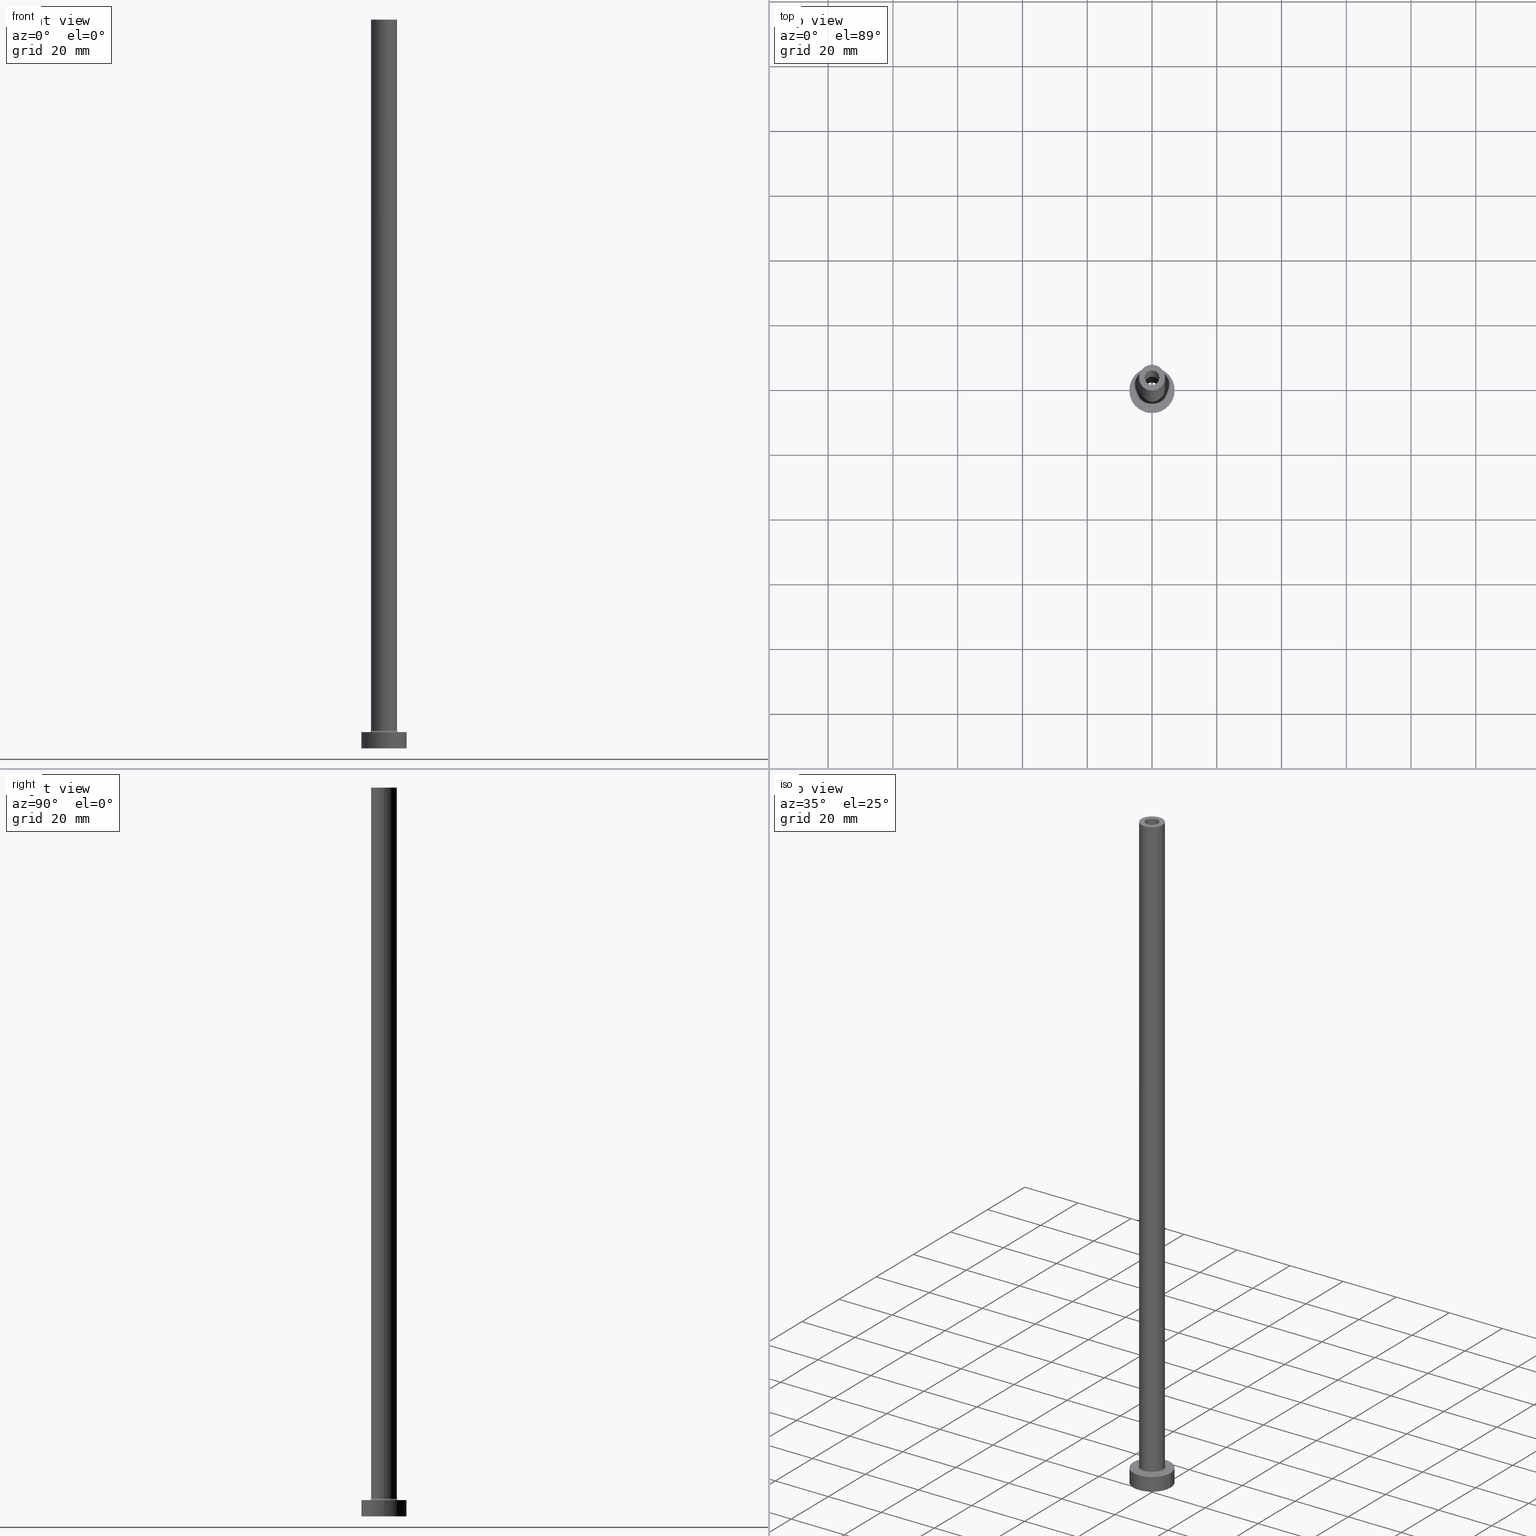
[diagram: canonical four-view strip — front | top / right | iso, engineering-drawing reading convention]
A machine part, canonical four-view strip (front | top / right | iso — engineering-drawing reading convention). The complete STEP part file that produces these views, byte-faithful:
ISO-10303-21;
HEADER;
FILE_DESCRIPTION (( 'STEP AP203' ),
    '1' );
FILE_NAME ('bf27.STEP',
    '2023-02-13T17:22:31',
    ( '' ),
    ( '' ),
    'SwSTEP 2.0',
    'SolidWorks 2019',
    '' );
FILE_SCHEMA (( 'CONFIG_CONTROL_DESIGN' ));
ENDSEC;

DATA;
#1 = ORIENTED_EDGE ( 'NONE', *, *, #126, .T. ) ;
#2 = VECTOR ( 'NONE', #210, 1000.000000000000000 ) ;
#3 = LINE ( 'NONE', #457, #106 ) ;
#4 = EDGE_LOOP ( 'NONE', ( #128, #224 ) ) ;
#5 = CC_DESIGN_SECURITY_CLASSIFICATION ( #340, ( #110 ) ) ;
#6 = DIRECTION ( 'NONE',  ( 1.000000000000000000, 0.000000000000000000, 0.000000000000000000 ) ) ;
#7 = CC_DESIGN_PERSON_AND_ORGANIZATION_ASSIGNMENT ( #437, #132, ( #83 ) ) ;
#8 = EDGE_LOOP ( 'NONE', ( #67, #1 ) ) ;
#9 = DIRECTION ( 'NONE',  ( -0.000000000000000000, -0.000000000000000000, -1.000000000000000000 ) ) ;
#10 = EDGE_LOOP ( 'NONE', ( #405, #358 ) ) ;
#11 = CARTESIAN_POINT ( 'NONE',  ( 0.000000000000000000, 0.000000000000000000, 225.0000000000000000 ) ) ;
#12 = AXIS2_PLACEMENT_3D ( 'NONE', #125, #255, #188 ) ;
#13 = UNCERTAINTY_MEASURE_WITH_UNIT (LENGTH_MEASURE( 1.000000000000000082E-05 ), #127, 'distance_accuracy_value', 'NONE');
#14 = DATE_TIME_ROLE ( 'creation_date' ) ;
#15 = AXIS2_PLACEMENT_3D ( 'NONE', #445, #411, #109 ) ;
#16 = DIRECTION ( 'NONE',  ( -1.000000000000000000, 0.000000000000000000, 0.000000000000000000 ) ) ;
#17 = CARTESIAN_POINT ( 'NONE',  ( 0.000000000000000000, 0.000000000000000000, 180.0000000000000000 ) ) ;
#18 = EDGE_CURVE ( 'NONE', #327, #143, #150, .T. ) ;
#19 = DIRECTION ( 'NONE',  ( 1.000000000000000000, 0.000000000000000000, 0.000000000000000000 ) ) ;
#20 = AXIS2_PLACEMENT_3D ( 'NONE', #113, #177, #249 ) ;
#21 = DIRECTION ( 'NONE',  ( -0.000000000000000000, -0.000000000000000000, -1.000000000000000000 ) ) ;
#22 = PERSON ( 'NEUR�EN�', 'NEUR�EN�', 'NEUR�EN�', ('NEUR�EN�'), ('NEUR�EN�'), ('NEUR�EN�') ) ;
#23 = COORDINATED_UNIVERSAL_TIME_OFFSET ( 1, 0, .AHEAD. ) ;
#24 = DIRECTION ( 'NONE',  ( 1.000000000000000000, 0.000000000000000000, 0.000000000000000000 ) ) ;
#25 = PRODUCT_RELATED_PRODUCT_CATEGORY ( 'detail', '', ( #169 ) ) ;
#26 = ADVANCED_FACE ( 'NONE', ( #60 ), #102, .F. ) ;
#27 = DIRECTION ( 'NONE',  ( -1.000000000000000000, 0.000000000000000000, 0.000000000000000000 ) ) ;
#28 = PLANE ( 'NONE',  #89 ) ;
#29 = VERTEX_POINT ( 'NONE', #133 ) ;
#30 = VECTOR ( 'NONE', #273, 1000.000000000000000 ) ;
#31 = AXIS2_PLACEMENT_3D ( 'NONE', #425, #402, #53 ) ;
#32 = LINE ( 'NONE', #357, #2 ) ;
#33 = CALENDAR_DATE ( 2023, 13, 2 ) ;
#34 = EDGE_LOOP ( 'NONE', ( #191, #355, #157, #145 ) ) ;
#35 = DIRECTION ( 'NONE',  ( -0.000000000000000000, -0.000000000000000000, -1.000000000000000000 ) ) ;
#36 = EDGE_CURVE ( 'NONE', #143, #29, #374, .T. ) ;
#37 = ORIENTED_EDGE ( 'NONE', *, *, #103, .T. ) ;
#38 = ADVANCED_FACE ( 'NONE', ( #375, #303 ), #439, .F. ) ;
#39 = FACE_OUTER_BOUND ( 'NONE', #162, .T. ) ;
#40 = AXIS2_PLACEMENT_3D ( 'NONE', #343, #244, #16 ) ;
#41 = FACE_OUTER_BOUND ( 'NONE', #278, .T. ) ;
#42 = APPROVAL_DATE_TIME ( #360, #227 ) ;
#43 = CC_DESIGN_APPROVAL ( #314, ( #83 ) ) ;
#44 = EDGE_LOOP ( 'NONE', ( #211, #335, #151, #194 ) ) ;
#45 = CC_DESIGN_APPROVAL ( #232, ( #340 ) ) ;
#46 = DIRECTION ( 'NONE',  ( 0.000000000000000000, 0.000000000000000000, 1.000000000000000000 ) ) ;
#47 = ORIENTED_EDGE ( 'NONE', *, *, #103, .F. ) ;
#48 = CARTESIAN_POINT ( 'NONE',  ( -2.250000000000000000, 0.000000000000000000, 225.0000000000000000 ) ) ;
#49 = DIRECTION ( 'NONE',  ( 1.000000000000000000, 0.000000000000000000, 0.000000000000000000 ) ) ;
#50 = CARTESIAN_POINT ( 'NONE',  ( 0.000000000000000000, 0.000000000000000000, 5.500000000000005329 ) ) ;
#51 = ORIENTED_EDGE ( 'NONE', *, *, #183, .F. ) ;
#52 = EDGE_CURVE ( 'NONE', #95, #321, #270, .T. ) ;
#53 = DIRECTION ( 'NONE',  ( 1.000000000000000000, 0.000000000000000000, 0.000000000000000000 ) ) ;
#54 = EDGE_LOOP ( 'NONE', ( #395, #217, #176, #434 ) ) ;
#55 = DIRECTION ( 'NONE',  ( 1.000000000000000000, 0.000000000000000000, 0.000000000000000000 ) ) ;
#56 = DIRECTION ( 'NONE',  ( 0.000000000000000000, 0.000000000000000000, 1.000000000000000000 ) ) ;
#57 = DIRECTION ( 'NONE',  ( 0.000000000000000000, 0.000000000000000000, 1.000000000000000000 ) ) ;
#58 = EDGE_CURVE ( 'NONE', #321, #329, #173, .T. ) ;
#59 = CARTESIAN_POINT ( 'NONE',  ( -7.000000000000000000, 0.000000000000000000, 5.000000000000000000 ) ) ;
#60 = FACE_OUTER_BOUND ( 'NONE', #34, .T. ) ;
#61 = APPROVAL_ROLE ( '' ) ;
#62 = VECTOR ( 'NONE', #9, 1000.000000000000000 ) ;
#63 = CARTESIAN_POINT ( 'NONE',  ( 0.000000000000000000, 0.000000000000000000, 5.500000000000005329 ) ) ;
#64 = CARTESIAN_POINT ( 'NONE',  ( 0.000000000000000000, 0.000000000000000000, 0.000000000000000000 ) ) ;
#65 = AXIS2_PLACEMENT_3D ( 'NONE', #356, #417, #27 ) ;
#66 = DIRECTION ( 'NONE',  ( -1.000000000000000000, 0.000000000000000000, 0.000000000000000000 ) ) ;
#67 = ORIENTED_EDGE ( 'NONE', *, *, #114, .T. ) ;
#68 = CARTESIAN_POINT ( 'NONE',  ( 4.000000000000000000, 4.898587196589412829E-16, 5.500000000000005329 ) ) ;
#69 = PERSON_AND_ORGANIZATION ( #22, #187 ) ;
#70 = AXIS2_PLACEMENT_3D ( 'NONE', #207, #57, #275 ) ;
#71 = ADVANCED_BREP_SHAPE_REPRESENTATION ( 'bf27', ( #98, #382 ), #200 ) ;
#72 = DIRECTION ( 'NONE',  ( 1.000000000000000000, 0.000000000000000000, 0.000000000000000000 ) ) ;
#73 = ORIENTED_EDGE ( 'NONE', *, *, #183, .T. ) ;
#74 = DIRECTION ( 'NONE',  ( 0.000000000000000000, 0.000000000000000000, -1.000000000000000000 ) ) ;
#75 = ORIENTED_EDGE ( 'NONE', *, *, #271, .F. ) ;
#76 = CARTESIAN_POINT ( 'NONE',  ( 2.250000000000000000, 2.755455298081544285E-16, 225.0000000000000000 ) ) ;
#77 = APPROVAL_ROLE ( '' ) ;
#78 = EDGE_LOOP ( 'NONE', ( #397, #86, #73, #259 ) ) ;
#79 = CIRCLE ( 'NONE', #31, 4.000000000000000000 ) ;
#80 = CARTESIAN_POINT ( 'NONE',  ( 0.000000000000000000, 0.000000000000000000, 225.0000000000000000 ) ) ;
#81 = CC_DESIGN_APPROVAL ( #227, ( #110 ) ) ;
#82 = ORIENTED_EDGE ( 'NONE', *, *, #339, .F. ) ;
#83 = PRODUCT_DEFINITION ( 'NEZN�M�', '', #110, #336 ) ;
#84 = CIRCLE ( 'NONE', #118, 4.500000000000000888 ) ;
#85 = PLANE ( 'NONE',  #240 ) ;
#86 = ORIENTED_EDGE ( 'NONE', *, *, #36, .T. ) ;
#87 = DIRECTION ( 'NONE',  ( 1.000000000000000000, 0.000000000000000000, -0.000000000000000000 ) ) ;
#88 = ORIENTED_EDGE ( 'NONE', *, *, #366, .F. ) ;
#89 = AXIS2_PLACEMENT_3D ( 'NONE', #315, #251, #172 ) ;
#90 = AXIS2_PLACEMENT_3D ( 'NONE', #63, #167, #269 ) ;
#91 = DIRECTION ( 'NONE',  ( 0.000000000000000000, 0.000000000000000000, 1.000000000000000000 ) ) ;
#92 = EDGE_CURVE ( 'NONE', #124, #95, #307, .T. ) ;
#93 = ORIENTED_EDGE ( 'NONE', *, *, #345, .F. ) ;
#94 = DATE_AND_TIME ( #129, #248 ) ;
#95 = VERTEX_POINT ( 'NONE', #170 ) ;
#96 = MECHANICAL_CONTEXT ( 'NONE', #131, 'mechanical' ) ;
#97 = DIRECTION ( 'NONE',  ( 1.000000000000000000, 0.000000000000000000, 0.000000000000000000 ) ) ;
#98 = MANIFOLD_SOLID_BREP ( 'Odebrat vysunut�m4', #387 ) ;
#99 = EDGE_CURVE ( 'NONE', #95, #316, #418, .T. ) ;
#100 = CARTESIAN_POINT ( 'NONE',  ( 0.000000000000000000, 0.000000000000000000, 0.000000000000000000 ) ) ;
#101 = CARTESIAN_POINT ( 'NONE',  ( 2.250000000000000000, 2.755455298081544285E-16, 225.0000000000000000 ) ) ;
#102 = CYLINDRICAL_SURFACE ( 'NONE', #40, 2.250000000000000000 ) ;
#103 = EDGE_CURVE ( 'NONE', #262, #367, #137, .T. ) ;
#104 = EDGE_CURVE ( 'NONE', #390, #29, #313, .T. ) ;
#105 = DIRECTION ( 'NONE',  ( 1.000000000000000000, 0.000000000000000000, -0.000000000000000000 ) ) ;
#106 = VECTOR ( 'NONE', #399, 1000.000000000000000 ) ;
#107 = AXIS2_PLACEMENT_3D ( 'NONE', #441, #203, #347 ) ;
#108 = AXIS2_PLACEMENT_3D ( 'NONE', #190, #359, #297 ) ;
#109 = DIRECTION ( 'NONE',  ( 1.000000000000000000, 0.000000000000000000, 0.000000000000000000 ) ) ;
#110 = PRODUCT_DEFINITION_FORMATION_WITH_SPECIFIED_SOURCE ( 'LIBOVOLN�', '', #169, .NOT_KNOWN. ) ;
#111 = CARTESIAN_POINT ( 'NONE',  ( 0.000000000000000000, 0.000000000000000000, 225.0000000000000000 ) ) ;
#112 = AXIS2_PLACEMENT_3D ( 'NONE', #451, #354, #66 ) ;
#113 = CARTESIAN_POINT ( 'NONE',  ( 0.000000000000000000, 0.000000000000000000, 5.500000000000005329 ) ) ;
#114 = EDGE_CURVE ( 'NONE', #256, #121, #346, .T. ) ;
#115 = CARTESIAN_POINT ( 'NONE',  ( -7.000000000000000000, 0.000000000000000000, 5.000000000000000000 ) ) ;
#116 = CYLINDRICAL_SURFACE ( 'NONE', #112, 2.250000000000000000 ) ;
#117 = CC_DESIGN_DATE_AND_TIME_ASSIGNMENT ( #182, #147, ( #340 ) ) ;
#118 = AXIS2_PLACEMENT_3D ( 'NONE', #407, #198, #337 ) ;
#119 = DIRECTION ( 'NONE',  ( 0.000000000000000000, 0.000000000000000000, 1.000000000000000000 ) ) ;
#120 = CALENDAR_DATE ( 2023, 13, 2 ) ;
#121 = VERTEX_POINT ( 'NONE', #135 ) ;
#122 = FACE_OUTER_BOUND ( 'NONE', #161, .T. ) ;
#123 = PERSON_AND_ORGANIZATION ( #22, #187 ) ;
#124 = VERTEX_POINT ( 'NONE', #140 ) ;
#125 = CARTESIAN_POINT ( 'NONE',  ( 0.000000000000000000, 0.000000000000000000, 5.000000000000000000 ) ) ;
#126 = EDGE_CURVE ( 'NONE', #121, #256, #152, .T. ) ;
#127 =( LENGTH_UNIT ( ) NAMED_UNIT ( * ) SI_UNIT ( .MILLI., .METRE. ) );
#128 = ORIENTED_EDGE ( 'NONE', *, *, #141, .T. ) ;
#129 = CALENDAR_DATE ( 2023, 13, 2 ) ;
#130 = ORIENTED_EDGE ( 'NONE', *, *, #99, .F. ) ;
#131 = APPLICATION_CONTEXT ( 'configuration controlled 3d designs of mechanical parts and assemblies' ) ;
#132 = PERSON_AND_ORGANIZATION_ROLE ( 'creator' ) ;
#133 = CARTESIAN_POINT ( 'NONE',  ( 2.399999999999999911, 2.939152317953647106E-16, 0.000000000000000000 ) ) ;
#134 = EDGE_CURVE ( 'NONE', #404, #256, #272, .T. ) ;
#135 = CARTESIAN_POINT ( 'NONE',  ( 2.250000000000000000, 2.755455298081544285E-16, 180.0000000000000000 ) ) ;
#136 = AXIS2_PLACEMENT_3D ( 'NONE', #215, #184, #323 ) ;
#137 = LINE ( 'NONE', #59, #258 ) ;
#138 = CARTESIAN_POINT ( 'NONE',  ( 0.000000000000000000, 0.000000000000000000, 0.000000000000000000 ) ) ;
#139 = VECTOR ( 'NONE', #74, 1000.000000000000000 ) ;
#140 = CARTESIAN_POINT ( 'NONE',  ( -4.000000000000000000, 0.000000000000000000, 225.0000000000000000 ) ) ;
#141 = EDGE_CURVE ( 'NONE', #124, #160, #293, .T. ) ;
#142 = DIRECTION ( 'NONE',  ( 1.000000000000000000, 0.000000000000000000, 0.000000000000000000 ) ) ;
#143 = VERTEX_POINT ( 'NONE', #201 ) ;
#144 = CARTESIAN_POINT ( 'NONE',  ( 4.500000000000000888, 0.000000000000000000, 5.500000000000005329 ) ) ;
#145 = ORIENTED_EDGE ( 'NONE', *, *, #134, .F. ) ;
#146 = DIRECTION ( 'NONE',  ( 0.000000000000000000, -1.000000000000000000, 0.000000000000000000 ) ) ;
#147 = DATE_TIME_ROLE ( 'classification_date' ) ;
#148 = CYLINDRICAL_SURFACE ( 'NONE', #193, 2.399999999999999911 ) ;
#149 = AXIS2_PLACEMENT_3D ( 'NONE', #421, #119, #381 ) ;
#150 = CIRCLE ( 'NONE', #206, 2.399999999999999911 ) ;
#151 = ORIENTED_EDGE ( 'NONE', *, *, #345, .T. ) ;
#152 = CIRCLE ( 'NONE', #239, 2.250000000000000000 ) ;
#153 = DIRECTION ( 'NONE',  ( 0.000000000000000000, 0.000000000000000000, -1.000000000000000000 ) ) ;
#154 = APPROVAL_STATUS ( 'not_yet_approved' ) ;
#155 =( NAMED_UNIT ( * ) SI_UNIT ( $, .STERADIAN. ) SOLID_ANGLE_UNIT ( ) );
#156 = PERSON_AND_ORGANIZATION_ROLE ( 'design_supplier' ) ;
#157 = ORIENTED_EDGE ( 'NONE', *, *, #114, .F. ) ;
#158 = APPROVAL_DATE_TIME ( #318, #232 ) ;
#159 = ORIENTED_EDGE ( 'NONE', *, *, #204, .T. ) ;
#160 = VERTEX_POINT ( 'NONE', #341 ) ;
#161 = EDGE_LOOP ( 'NONE', ( #130, #414, #296, #75 ) ) ;
#162 = EDGE_LOOP ( 'NONE', ( #299, #179, #291, #47 ) ) ;
#163 = APPROVAL_DATE_TIME ( #94, #314 ) ;
#164 = CARTESIAN_POINT ( 'NONE',  ( 0.000000000000000000, 0.000000000000000000, 0.000000000000000000 ) ) ;
#165 = AXIS2_PLACEMENT_3D ( 'NONE', #171, #310, #438 ) ;
#166 = CC_DESIGN_PERSON_AND_ORGANIZATION_ASSIGNMENT ( #309, #443, ( #169 ) ) ;
#167 = DIRECTION ( 'NONE',  ( 0.000000000000000000, 0.000000000000000000, 1.000000000000000000 ) ) ;
#168 = DIRECTION ( 'NONE',  ( 0.000000000000000000, 0.000000000000000000, 1.000000000000000000 ) ) ;
#169 = PRODUCT ( 'bf27', 'bf27', '', ( #96 ) ) ;
#170 = CARTESIAN_POINT ( 'NONE',  ( -4.000000000000000000, 0.000000000000000000, 5.500000000000005329 ) ) ;
#171 = CARTESIAN_POINT ( 'NONE',  ( 0.000000000000000000, 0.000000000000000000, 5.000000000000000000 ) ) ;
#172 = DIRECTION ( 'NONE',  ( 1.000000000000000000, 0.000000000000000000, -0.000000000000000000 ) ) ;
#173 = CIRCLE ( 'NONE', #107, 4.500000000000000888 ) ;
#174 = EDGE_CURVE ( 'NONE', #262, #331, #352, .T. ) ;
#175 = FACE_OUTER_BOUND ( 'NONE', #192, .T. ) ;
#176 = ORIENTED_EDGE ( 'NONE', *, *, #92, .T. ) ;
#177 = DIRECTION ( 'NONE',  ( 0.000000000000000000, 0.000000000000000000, 1.000000000000000000 ) ) ;
#178 = PERSON_AND_ORGANIZATION ( #22, #187 ) ;
#179 = ORIENTED_EDGE ( 'NONE', *, *, #409, .T. ) ;
#180 = CARTESIAN_POINT ( 'NONE',  ( -2.399999999999999911, 0.000000000000000000, 180.0000000000000000 ) ) ;
#181 = CC_DESIGN_PERSON_AND_ORGANIZATION_ASSIGNMENT ( #69, #156, ( #110 ) ) ;
#182 = DATE_AND_TIME ( #33, #380 ) ;
#183 = EDGE_CURVE ( 'NONE', #29, #390, #415, .T. ) ;
#184 = DIRECTION ( 'NONE',  ( 0.000000000000000000, 0.000000000000000000, -1.000000000000000000 ) ) ;
#185 = AXIS2_PLACEMENT_3D ( 'NONE', #396, #91, #460 ) ;
#186 = APPROVAL_PERSON_ORGANIZATION ( #178, #232, #393 ) ;
#187 = ORGANIZATION ( 'NEUR�EN�', 'NEUR�EN�', '' ) ;
#188 = DIRECTION ( 'NONE',  ( -1.000000000000000000, 0.000000000000000000, 0.000000000000000000 ) ) ;
#189 = ORIENTED_EDGE ( 'NONE', *, *, #366, .T. ) ;
#190 = CARTESIAN_POINT ( 'NONE',  ( 0.000000000000000000, 0.000000000000000000, 5.500000000000005329 ) ) ;
#191 = ORIENTED_EDGE ( 'NONE', *, *, #308, .T. ) ;
#192 = EDGE_LOOP ( 'NONE', ( #263, #88 ) ) ;
#193 = AXIS2_PLACEMENT_3D ( 'NONE', #285, #153, #286 ) ;
#194 = ORIENTED_EDGE ( 'NONE', *, *, #92, .F. ) ;
#195 = FACE_BOUND ( 'NONE', #231, .T. ) ;
#196 = ORIENTED_EDGE ( 'NONE', *, *, #126, .F. ) ;
#197 = EDGE_CURVE ( 'NONE', #329, #321, #84, .T. ) ;
#198 = DIRECTION ( 'NONE',  ( -0.000000000000000000, -0.000000000000000000, -1.000000000000000000 ) ) ;
#199 = VECTOR ( 'NONE', #268, 1000.000000000000000 ) ;
#200 =( GEOMETRIC_REPRESENTATION_CONTEXT ( 3 ) GLOBAL_UNCERTAINTY_ASSIGNED_CONTEXT ( ( #13 ) ) GLOBAL_UNIT_ASSIGNED_CONTEXT ( ( #127, #324, #155 ) ) REPRESENTATION_CONTEXT ( 'NONE', 'WORKASPACE' ) );
#201 = CARTESIAN_POINT ( 'NONE',  ( 2.399999999999999911, 2.939152317953647106E-16, 180.0000000000000000 ) ) ;
#202 = CIRCLE ( 'NONE', #319, 0.5000000000000004441 ) ;
#203 = DIRECTION ( 'NONE',  ( -0.000000000000000000, -0.000000000000000000, -1.000000000000000000 ) ) ;
#204 = EDGE_CURVE ( 'NONE', #429, #404, #218, .T. ) ;
#205 = DIRECTION ( 'NONE',  ( 1.224646799147353207E-16, 1.000000000000000000, -0.000000000000000000 ) ) ;
#206 = AXIS2_PLACEMENT_3D ( 'NONE', #294, #365, #49 ) ;
#207 = CARTESIAN_POINT ( 'NONE',  ( 0.000000000000000000, 0.000000000000000000, 225.0000000000000000 ) ) ;
#208 = CARTESIAN_POINT ( 'NONE',  ( 0.000000000000000000, 0.000000000000000000, 225.0000000000000000 ) ) ;
#209 = EDGE_CURVE ( 'NONE', #429, #121, #238, .T. ) ;
#210 = DIRECTION ( 'NONE',  ( 0.000000000000000000, 0.000000000000000000, -1.000000000000000000 ) ) ;
#211 = ORIENTED_EDGE ( 'NONE', *, *, #461, .F. ) ;
#212 = CARTESIAN_POINT ( 'NONE',  ( 4.500000000000000888, 0.000000000000000000, 5.000000000000002665 ) ) ;
#213 = PERSON_AND_ORGANIZATION_ROLE ( 'classification_officer' ) ;
#214 = ORIENTED_EDGE ( 'NONE', *, *, #209, .F. ) ;
#215 = CARTESIAN_POINT ( 'NONE',  ( 0.000000000000000000, 0.000000000000000000, 186.7882250993908713 ) ) ;
#216 = COORDINATED_UNIVERSAL_TIME_OFFSET ( 1, 0, .AHEAD. ) ;
#217 = ORIENTED_EDGE ( 'NONE', *, *, #141, .F. ) ;
#218 = CIRCLE ( 'NONE', #334, 2.250000000000000000 ) ;
#219 = CARTESIAN_POINT ( 'NONE',  ( 0.000000000000000000, 0.000000000000000000, 5.000000000000000000 ) ) ;
#220 = EDGE_LOOP ( 'NONE', ( #82, #450 ) ) ;
#221 = CARTESIAN_POINT ( 'NONE',  ( 7.000000000000000000, 8.572527594031473190E-16, 0.000000000000000000 ) ) ;
#222 = COORDINATED_UNIVERSAL_TIME_OFFSET ( 1, 0, .AHEAD. ) ;
#223 = APPLICATION_CONTEXT ( 'configuration controlled 3d designs of mechanical parts and assemblies' ) ;
#224 = ORIENTED_EDGE ( 'NONE', *, *, #461, .T. ) ;
#225 = DIRECTION ( 'NONE',  ( 0.000000000000000000, 0.000000000000000000, 1.000000000000000000 ) ) ;
#226 = ORIENTED_EDGE ( 'NONE', *, *, #52, .F. ) ;
#227 = APPROVAL ( #154, 'NEUR�EN�' ) ;
#228 = ORIENTED_EDGE ( 'NONE', *, *, #36, .F. ) ;
#229 = FACE_OUTER_BOUND ( 'NONE', #266, .T. ) ;
#230 = CIRCLE ( 'NONE', #20, 4.000000000000000000 ) ;
#231 = EDGE_LOOP ( 'NONE', ( #386, #236 ) ) ;
#232 = APPROVAL ( #458, 'NEUR�EN�' ) ;
#233 = CARTESIAN_POINT ( 'NONE',  ( 7.000000000000000000, 8.572527594031473190E-16, 5.000000000000000000 ) ) ;
#234 = EDGE_LOOP ( 'NONE', ( #228, #189, #423, #287 ) ) ;
#235 = PRODUCT_DEFINITION_SHAPE ( 'NONE', 'NONE',  #83 ) ;
#236 = ORIENTED_EDGE ( 'NONE', *, *, #58, .T. ) ;
#237 = COORDINATED_UNIVERSAL_TIME_OFFSET ( 1, 0, .AHEAD. ) ;
#238 = LINE ( 'NONE', #101, #139 ) ;
#239 = AXIS2_PLACEMENT_3D ( 'NONE', #17, #168, #305 ) ;
#240 = AXIS2_PLACEMENT_3D ( 'NONE', #80, #225, #362 ) ;
#241 = DIRECTION ( 'NONE',  ( 0.000000000000000000, 0.000000000000000000, 1.000000000000000000 ) ) ;
#242 = CARTESIAN_POINT ( 'NONE',  ( 0.000000000000000000, 0.000000000000000000, 180.0000000000000000 ) ) ;
#243 = APPLICATION_PROTOCOL_DEFINITION ( 'international standard', 'config_control_design', 1994, #223 ) ;
#244 = DIRECTION ( 'NONE',  ( 0.000000000000000000, 0.000000000000000000, -1.000000000000000000 ) ) ;
#245 = AXIS2_PLACEMENT_3D ( 'NONE', #50, #46, #6 ) ;
#246 = TOROIDAL_SURFACE ( 'NONE', #108, 4.500000000000000888, 0.5000000000000000000 ) ;
#247 = CARTESIAN_POINT ( 'NONE',  ( 2.399999999999999911, 2.939152317953647106E-16, 186.7882250993908713 ) ) ;
#248 = LOCAL_TIME ( 18, 22, 31.00000000000000000, #23 ) ;
#249 = DIRECTION ( 'NONE',  ( 1.000000000000000000, 0.000000000000000000, 0.000000000000000000 ) ) ;
#250 = ADVANCED_FACE ( 'NONE', ( #39 ), #392, .T. ) ;
#251 = DIRECTION ( 'NONE',  ( 0.000000000000000000, 0.000000000000000000, 1.000000000000000000 ) ) ;
#252 = ADVANCED_FACE ( 'NONE', ( #416 ), #116, .F. ) ;
#253 = FACE_BOUND ( 'NONE', #8, .T. ) ;
#254 = FACE_OUTER_BOUND ( 'NONE', #44, .T. ) ;
#255 = DIRECTION ( 'NONE',  ( -0.000000000000000000, -0.000000000000000000, -1.000000000000000000 ) ) ;
#256 = VERTEX_POINT ( 'NONE', #455 ) ;
#257 = CARTESIAN_POINT ( 'NONE',  ( -7.000000000000000000, 0.000000000000000000, 0.000000000000000000 ) ) ;
#258 = VECTOR ( 'NONE', #444, 1000.000000000000000 ) ;
#259 = ORIENTED_EDGE ( 'NONE', *, *, #330, .F. ) ;
#260 = LINE ( 'NONE', #233, #62 ) ;
#261 = PERSON_AND_ORGANIZATION_ROLE ( 'creator' ) ;
#262 = VERTEX_POINT ( 'NONE', #115 ) ;
#263 = ORIENTED_EDGE ( 'NONE', *, *, #18, .F. ) ;
#264 = CC_DESIGN_DATE_AND_TIME_ASSIGNMENT ( #338, #14, ( #83 ) ) ;
#265 = CARTESIAN_POINT ( 'NONE',  ( 0.000000000000000000, 0.000000000000000000, 5.000000000000000000 ) ) ;
#266 = EDGE_LOOP ( 'NONE', ( #226, #93, #325, #267 ) ) ;
#267 = ORIENTED_EDGE ( 'NONE', *, *, #58, .F. ) ;
#268 = DIRECTION ( 'NONE',  ( 0.000000000000000000, 0.000000000000000000, -1.000000000000000000 ) ) ;
#269 = DIRECTION ( 'NONE',  ( 1.000000000000000000, 0.000000000000000000, 0.000000000000000000 ) ) ;
#270 = CIRCLE ( 'NONE', #442, 0.5000000000000004441 ) ;
#271 = EDGE_CURVE ( 'NONE', #316, #329, #202, .T. ) ;
#272 = LINE ( 'NONE', #406, #30 ) ;
#273 = DIRECTION ( 'NONE',  ( 0.000000000000000000, 0.000000000000000000, -1.000000000000000000 ) ) ;
#274 = CC_DESIGN_PERSON_AND_ORGANIZATION_ASSIGNMENT ( #456, #213, ( #340 ) ) ;
#275 = DIRECTION ( 'NONE',  ( 1.000000000000000000, 0.000000000000000000, 0.000000000000000000 ) ) ;
#276 = AXIS2_PLACEMENT_3D ( 'NONE', #265, #430, #87 ) ;
#277 = FACE_OUTER_BOUND ( 'NONE', #54, .T. ) ;
#278 = EDGE_LOOP ( 'NONE', ( #370, #298, #37, #400 ) ) ;
#279 = LOCAL_TIME ( 18, 22, 31.00000000000000000, #222 ) ;
#280 = DIRECTION ( 'NONE',  ( 0.000000000000000000, 0.000000000000000000, 1.000000000000000000 ) ) ;
#281 = EDGE_LOOP ( 'NONE', ( #384, #447 ) ) ;
#282 = DIRECTION ( 'NONE',  ( 0.000000000000000000, 0.000000000000000000, -1.000000000000000000 ) ) ;
#283 = ADVANCED_FACE ( 'NONE', ( #253, #175 ), #28, .F. ) ;
#284 = CIRCLE ( 'NONE', #401, 7.000000000000000000 ) ;
#285 = CARTESIAN_POINT ( 'NONE',  ( 0.000000000000000000, 0.000000000000000000, 186.7882250993908713 ) ) ;
#286 = DIRECTION ( 'NONE',  ( -1.000000000000000000, 0.000000000000000000, 0.000000000000000000 ) ) ;
#287 = ORIENTED_EDGE ( 'NONE', *, *, #104, .T. ) ;
#288 = DIRECTION ( 'NONE',  ( -1.000000000000000000, 0.000000000000000000, 0.000000000000000000 ) ) ;
#289 = CALENDAR_DATE ( 2023, 13, 2 ) ;
#290 = ADVANCED_FACE ( 'NONE', ( #254 ), #317, .T. ) ;
#291 = ORIENTED_EDGE ( 'NONE', *, *, #348, .T. ) ;
#292 = PLANE ( 'NONE',  #276 ) ;
#293 = CIRCLE ( 'NONE', #70, 4.000000000000000000 ) ;
#294 = CARTESIAN_POINT ( 'NONE',  ( 0.000000000000000000, 0.000000000000000000, 180.0000000000000000 ) ) ;
#295 = FACE_BOUND ( 'NONE', #281, .T. ) ;
#296 = ORIENTED_EDGE ( 'NONE', *, *, #197, .F. ) ;
#297 = DIRECTION ( 'NONE',  ( 1.000000000000000000, 0.000000000000000000, 0.000000000000000000 ) ) ;
#298 = ORIENTED_EDGE ( 'NONE', *, *, #174, .F. ) ;
#299 = ORIENTED_EDGE ( 'NONE', *, *, #304, .F. ) ;
#300 = LOCAL_TIME ( 18, 22, 31.00000000000000000, #237 ) ;
#301 = DIRECTION ( 'NONE',  ( 0.000000000000000000, 0.000000000000000000, 1.000000000000000000 ) ) ;
#302 = PERSON_AND_ORGANIZATION ( #22, #187 ) ;
#303 = FACE_OUTER_BOUND ( 'NONE', #220, .T. ) ;
#304 = EDGE_CURVE ( 'NONE', #331, #262, #344, .T. ) ;
#305 = DIRECTION ( 'NONE',  ( 1.000000000000000000, 0.000000000000000000, 0.000000000000000000 ) ) ;
#306 = VECTOR ( 'NONE', #21, 1000.000000000000000 ) ;
#307 = LINE ( 'NONE', #378, #306 ) ;
#308 = EDGE_CURVE ( 'NONE', #404, #429, #373, .T. ) ;
#309 = PERSON_AND_ORGANIZATION ( #22, #187 ) ;
#310 = DIRECTION ( 'NONE',  ( 0.000000000000000000, 0.000000000000000000, 1.000000000000000000 ) ) ;
#311 = DIRECTION ( 'NONE',  ( 1.000000000000000000, 0.000000000000000000, 0.000000000000000000 ) ) ;
#312 = AXIS2_PLACEMENT_3D ( 'NONE', #208, #388, #72 ) ;
#313 = CIRCLE ( 'NONE', #424, 2.399999999999999911 ) ;
#314 = APPROVAL ( #369, 'NEUR�EN�' ) ;
#315 = CARTESIAN_POINT ( 'NONE',  ( 0.000000000000000000, 0.000000000000000000, 180.0000000000000000 ) ) ;
#316 = VERTEX_POINT ( 'NONE', #68 ) ;
#317 = CYLINDRICAL_SURFACE ( 'NONE', #412, 4.000000000000000000 ) ;
#318 = DATE_AND_TIME ( #289, #435 ) ;
#319 = AXIS2_PLACEMENT_3D ( 'NONE', #144, #146, #282 ) ;
#320 = CARTESIAN_POINT ( 'NONE',  ( 7.000000000000000000, 8.572527594031473190E-16, 5.000000000000000000 ) ) ;
#321 = VERTEX_POINT ( 'NONE', #419 ) ;
#322 = CIRCLE ( 'NONE', #185, 2.399999999999999911 ) ;
#323 = DIRECTION ( 'NONE',  ( -1.000000000000000000, 0.000000000000000000, 0.000000000000000000 ) ) ;
#324 =( NAMED_UNIT ( * ) PLANE_ANGLE_UNIT ( ) SI_UNIT ( $, .RADIAN. ) );
#325 = ORIENTED_EDGE ( 'NONE', *, *, #271, .T. ) ;
#326 = FACE_OUTER_BOUND ( 'NONE', #4, .T. ) ;
#327 = VERTEX_POINT ( 'NONE', #180 ) ;
#328 = AXIS2_PLACEMENT_3D ( 'NONE', #164, #410, #105 ) ;
#329 = VERTEX_POINT ( 'NONE', #212 ) ;
#330 = EDGE_CURVE ( 'NONE', #327, #390, #32, .T. ) ;
#331 = VERTEX_POINT ( 'NONE', #320 ) ;
#332 = ADVANCED_FACE ( 'NONE', ( #453 ), #446, .F. ) ;
#333 = ADVANCED_FACE ( 'NONE', ( #350 ), #148, .F. ) ;
#334 = AXIS2_PLACEMENT_3D ( 'NONE', #11, #301, #97 ) ;
#335 = ORIENTED_EDGE ( 'NONE', *, *, #398, .T. ) ;
#336 = DESIGN_CONTEXT ( 'detailed design', #223, 'design' ) ;
#337 = DIRECTION ( 'NONE',  ( 1.000000000000000000, 0.000000000000000000, 0.000000000000000000 ) ) ;
#338 = DATE_AND_TIME ( #372, #300 ) ;
#339 = EDGE_CURVE ( 'NONE', #367, #431, #440, .T. ) ;
#340 = SECURITY_CLASSIFICATION ( '', '', #389 ) ;
#341 = CARTESIAN_POINT ( 'NONE',  ( 4.000000000000000000, 4.898587196589412829E-16, 225.0000000000000000 ) ) ;
#342 = DIRECTION ( 'NONE',  ( -0.000000000000000000, -0.000000000000000000, -1.000000000000000000 ) ) ;
#343 = CARTESIAN_POINT ( 'NONE',  ( 0.000000000000000000, 0.000000000000000000, 225.0000000000000000 ) ) ;
#344 = CIRCLE ( 'NONE', #351, 7.000000000000000000 ) ;
#345 = EDGE_CURVE ( 'NONE', #316, #95, #230, .T. ) ;
#346 = CIRCLE ( 'NONE', #403, 2.250000000000000000 ) ;
#347 = DIRECTION ( 'NONE',  ( 1.000000000000000000, 0.000000000000000000, 0.000000000000000000 ) ) ;
#348 = EDGE_CURVE ( 'NONE', #431, #367, #284, .T. ) ;
#349 = DIRECTION ( 'NONE',  ( 0.000000000000000000, 0.000000000000000000, 1.000000000000000000 ) ) ;
#350 = FACE_OUTER_BOUND ( 'NONE', #234, .T. ) ;
#351 = AXIS2_PLACEMENT_3D ( 'NONE', #219, #280, #311 ) ;
#352 = CIRCLE ( 'NONE', #165, 7.000000000000000000 ) ;
#353 = ADVANCED_FACE ( 'NONE', ( #277 ), #413, .T. ) ;
#354 = DIRECTION ( 'NONE',  ( 0.000000000000000000, 0.000000000000000000, -1.000000000000000000 ) ) ;
#355 = ORIENTED_EDGE ( 'NONE', *, *, #209, .T. ) ;
#356 = CARTESIAN_POINT ( 'NONE',  ( 0.000000000000000000, 0.000000000000000000, 5.000000000000000000 ) ) ;
#357 = CARTESIAN_POINT ( 'NONE',  ( -2.399999999999999911, 0.000000000000000000, 186.7882250993908713 ) ) ;
#358 = ORIENTED_EDGE ( 'NONE', *, *, #304, .T. ) ;
#359 = DIRECTION ( 'NONE',  ( 0.000000000000000000, 0.000000000000000000, 1.000000000000000000 ) ) ;
#360 = DATE_AND_TIME ( #120, #279 ) ;
#361 = APPROVAL_PERSON_ORGANIZATION ( #302, #227, #77 ) ;
#362 = DIRECTION ( 'NONE',  ( 1.000000000000000000, 0.000000000000000000, -0.000000000000000000 ) ) ;
#363 = ORIENTED_EDGE ( 'NONE', *, *, #104, .F. ) ;
#364 = APPLICATION_PROTOCOL_DEFINITION ( 'international standard', 'config_control_design', 1994, #131 ) ;
#365 = DIRECTION ( 'NONE',  ( 0.000000000000000000, 0.000000000000000000, 1.000000000000000000 ) ) ;
#366 = EDGE_CURVE ( 'NONE', #143, #327, #322, .T. ) ;
#367 = VERTEX_POINT ( 'NONE', #257 ) ;
#368 = EDGE_LOOP ( 'NONE', ( #363, #51 ) ) ;
#369 = APPROVAL_STATUS ( 'not_yet_approved' ) ;
#370 = ORIENTED_EDGE ( 'NONE', *, *, #409, .F. ) ;
#371 = ADVANCED_FACE ( 'NONE', ( #229 ), #432, .F. ) ;
#372 = CALENDAR_DATE ( 2023, 13, 2 ) ;
#373 = CIRCLE ( 'NONE', #312, 2.250000000000000000 ) ;
#374 = LINE ( 'NONE', #247, #199 ) ;
#375 = FACE_BOUND ( 'NONE', #368, .T. ) ;
#376 = CARTESIAN_POINT ( 'NONE',  ( -4.500000000000000888, 5.510910596163089556E-16, 5.500000000000005329 ) ) ;
#377 = PERSON_AND_ORGANIZATION ( #22, #187 ) ;
#378 = CARTESIAN_POINT ( 'NONE',  ( -4.000000000000000000, 0.000000000000000000, 225.0000000000000000 ) ) ;
#379 = AXIS2_PLACEMENT_3D ( 'NONE', #111, #383, #288 ) ;
#380 = LOCAL_TIME ( 18, 22, 31.00000000000000000, #216 ) ;
#381 = DIRECTION ( 'NONE',  ( 1.000000000000000000, 0.000000000000000000, 0.000000000000000000 ) ) ;
#382 = AXIS2_PLACEMENT_3D ( 'NONE', #100, #56, #19 ) ;
#383 = DIRECTION ( 'NONE',  ( -0.000000000000000000, -0.000000000000000000, -1.000000000000000000 ) ) ;
#384 = ORIENTED_EDGE ( 'NONE', *, *, #308, .F. ) ;
#385 = DIRECTION ( 'NONE',  ( -1.000000000000000000, 0.000000000000000000, 0.000000000000000000 ) ) ;
#386 = ORIENTED_EDGE ( 'NONE', *, *, #197, .T. ) ;
#387 = CLOSED_SHELL ( 'NONE', ( #26, #332, #427, #290, #250, #433, #454, #38, #353, #448, #371, #333, #283, #252 ) ) ;
#388 = DIRECTION ( 'NONE',  ( 0.000000000000000000, 0.000000000000000000, 1.000000000000000000 ) ) ;
#389 = SECURITY_CLASSIFICATION_LEVEL ( 'unclassified' ) ;
#390 = VERTEX_POINT ( 'NONE', #428 ) ;
#391 = CC_DESIGN_PERSON_AND_ORGANIZATION_ASSIGNMENT ( #123, #261, ( #110 ) ) ;
#392 = CYLINDRICAL_SURFACE ( 'NONE', #65, 7.000000000000000000 ) ;
#393 = APPROVAL_ROLE ( '' ) ;
#394 = FACE_OUTER_BOUND ( 'NONE', #10, .T. ) ;
#395 = ORIENTED_EDGE ( 'NONE', *, *, #398, .F. ) ;
#396 = CARTESIAN_POINT ( 'NONE',  ( 0.000000000000000000, 0.000000000000000000, 180.0000000000000000 ) ) ;
#397 = ORIENTED_EDGE ( 'NONE', *, *, #18, .T. ) ;
#398 = EDGE_CURVE ( 'NONE', #160, #316, #3, .T. ) ;
#399 = DIRECTION ( 'NONE',  ( -0.000000000000000000, -0.000000000000000000, -1.000000000000000000 ) ) ;
#400 = ORIENTED_EDGE ( 'NONE', *, *, #339, .T. ) ;
#401 = AXIS2_PLACEMENT_3D ( 'NONE', #64, #349, #142 ) ;
#402 = DIRECTION ( 'NONE',  ( 0.000000000000000000, 0.000000000000000000, 1.000000000000000000 ) ) ;
#403 = AXIS2_PLACEMENT_3D ( 'NONE', #242, #241, #55 ) ;
#404 = VERTEX_POINT ( 'NONE', #48 ) ;
#405 = ORIENTED_EDGE ( 'NONE', *, *, #174, .T. ) ;
#406 = CARTESIAN_POINT ( 'NONE',  ( -2.250000000000000000, 0.000000000000000000, 225.0000000000000000 ) ) ;
#407 = CARTESIAN_POINT ( 'NONE',  ( 0.000000000000000000, 0.000000000000000000, 5.000000000000000000 ) ) ;
#408 = DIRECTION ( 'NONE',  ( -1.000000000000000000, 1.224646799147351482E-16, 0.000000000000000000 ) ) ;
#409 = EDGE_CURVE ( 'NONE', #331, #431, #260, .T. ) ;
#410 = DIRECTION ( 'NONE',  ( 0.000000000000000000, 0.000000000000000000, 1.000000000000000000 ) ) ;
#411 = DIRECTION ( 'NONE',  ( -0.000000000000000000, -0.000000000000000000, -1.000000000000000000 ) ) ;
#412 = AXIS2_PLACEMENT_3D ( 'NONE', #449, #35, #385 ) ;
#413 = CYLINDRICAL_SURFACE ( 'NONE', #379, 4.000000000000000000 ) ;
#414 = ORIENTED_EDGE ( 'NONE', *, *, #52, .T. ) ;
#415 = CIRCLE ( 'NONE', #15, 2.399999999999999911 ) ;
#416 = FACE_OUTER_BOUND ( 'NONE', #426, .T. ) ;
#417 = DIRECTION ( 'NONE',  ( -0.000000000000000000, -0.000000000000000000, -1.000000000000000000 ) ) ;
#418 = CIRCLE ( 'NONE', #90, 4.000000000000000000 ) ;
#419 = CARTESIAN_POINT ( 'NONE',  ( -4.500000000000000888, 5.510910596163088569E-16, 5.000000000000002665 ) ) ;
#420 = COORDINATED_UNIVERSAL_TIME_OFFSET ( 1, 0, .AHEAD. ) ;
#421 = CARTESIAN_POINT ( 'NONE',  ( 0.000000000000000000, 0.000000000000000000, 0.000000000000000000 ) ) ;
#422 = CYLINDRICAL_SURFACE ( 'NONE', #12, 7.000000000000000000 ) ;
#423 = ORIENTED_EDGE ( 'NONE', *, *, #330, .T. ) ;
#424 = AXIS2_PLACEMENT_3D ( 'NONE', #138, #342, #24 ) ;
#425 = CARTESIAN_POINT ( 'NONE',  ( 0.000000000000000000, 0.000000000000000000, 225.0000000000000000 ) ) ;
#426 = EDGE_LOOP ( 'NONE', ( #214, #159, #459, #196 ) ) ;
#427 = ADVANCED_FACE ( 'NONE', ( #122 ), #246, .F. ) ;
#428 = CARTESIAN_POINT ( 'NONE',  ( -2.399999999999999911, 0.000000000000000000, 0.000000000000000000 ) ) ;
#429 = VERTEX_POINT ( 'NONE', #76 ) ;
#430 = DIRECTION ( 'NONE',  ( 0.000000000000000000, 0.000000000000000000, 1.000000000000000000 ) ) ;
#431 = VERTEX_POINT ( 'NONE', #221 ) ;
#432 = TOROIDAL_SURFACE ( 'NONE', #245, 4.500000000000000888, 0.5000000000000000000 ) ;
#433 = ADVANCED_FACE ( 'NONE', ( #41 ), #422, .T. ) ;
#434 = ORIENTED_EDGE ( 'NONE', *, *, #99, .T. ) ;
#435 = LOCAL_TIME ( 18, 22, 31.00000000000000000, #420 ) ;
#436 = APPROVAL_PERSON_ORGANIZATION ( #377, #314, #61 ) ;
#437 = PERSON_AND_ORGANIZATION ( #22, #187 ) ;
#438 = DIRECTION ( 'NONE',  ( 1.000000000000000000, 0.000000000000000000, 0.000000000000000000 ) ) ;
#439 = PLANE ( 'NONE',  #328 ) ;
#440 = CIRCLE ( 'NONE', #149, 7.000000000000000000 ) ;
#441 = CARTESIAN_POINT ( 'NONE',  ( 0.000000000000000000, 0.000000000000000000, 5.000000000000000000 ) ) ;
#442 = AXIS2_PLACEMENT_3D ( 'NONE', #376, #205, #408 ) ;
#443 = PERSON_AND_ORGANIZATION_ROLE ( 'design_owner' ) ;
#444 = DIRECTION ( 'NONE',  ( -0.000000000000000000, -0.000000000000000000, -1.000000000000000000 ) ) ;
#445 = CARTESIAN_POINT ( 'NONE',  ( 0.000000000000000000, 0.000000000000000000, 0.000000000000000000 ) ) ;
#446 = CYLINDRICAL_SURFACE ( 'NONE', #136, 2.399999999999999911 ) ;
#447 = ORIENTED_EDGE ( 'NONE', *, *, #204, .F. ) ;
#448 = ADVANCED_FACE ( 'NONE', ( #295, #326 ), #85, .T. ) ;
#449 = CARTESIAN_POINT ( 'NONE',  ( 0.000000000000000000, 0.000000000000000000, 225.0000000000000000 ) ) ;
#450 = ORIENTED_EDGE ( 'NONE', *, *, #348, .F. ) ;
#451 = CARTESIAN_POINT ( 'NONE',  ( 0.000000000000000000, 0.000000000000000000, 225.0000000000000000 ) ) ;
#452 = SHAPE_DEFINITION_REPRESENTATION ( #235, #71 ) ;
#453 = FACE_OUTER_BOUND ( 'NONE', #78, .T. ) ;
#454 = ADVANCED_FACE ( 'NONE', ( #195, #394 ), #292, .T. ) ;
#455 = CARTESIAN_POINT ( 'NONE',  ( -2.250000000000000000, 0.000000000000000000, 180.0000000000000000 ) ) ;
#456 = PERSON_AND_ORGANIZATION ( #22, #187 ) ;
#457 = CARTESIAN_POINT ( 'NONE',  ( 4.000000000000000000, 4.898587196589412829E-16, 225.0000000000000000 ) ) ;
#458 = APPROVAL_STATUS ( 'not_yet_approved' ) ;
#459 = ORIENTED_EDGE ( 'NONE', *, *, #134, .T. ) ;
#460 = DIRECTION ( 'NONE',  ( 1.000000000000000000, 0.000000000000000000, 0.000000000000000000 ) ) ;
#461 = EDGE_CURVE ( 'NONE', #160, #124, #79, .T. ) ;
ENDSEC;
END-ISO-10303-21;
